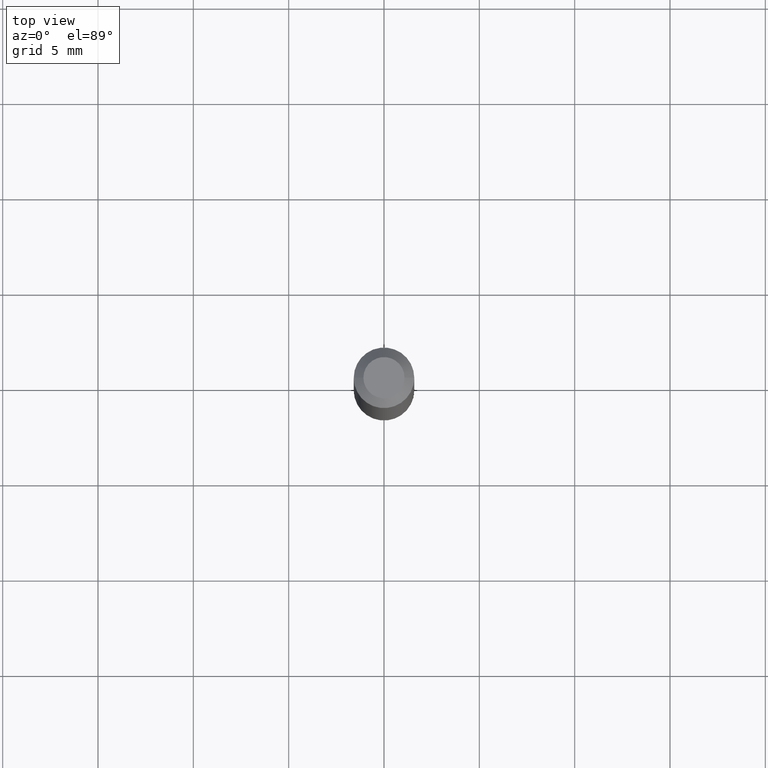
[diagram: clean part render]
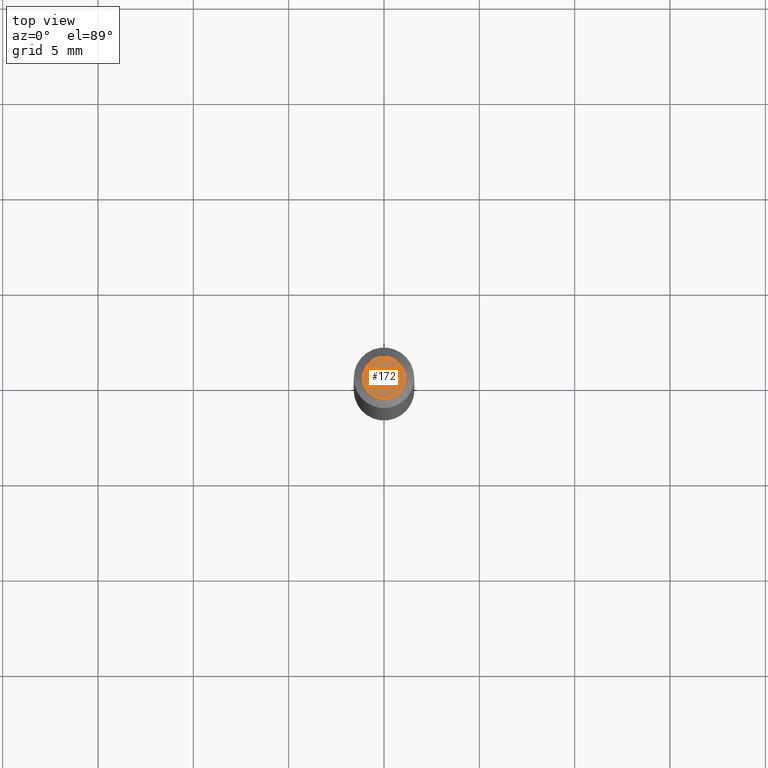
[diagram: same view with one face highlighted and labeled with its STEP entity id]
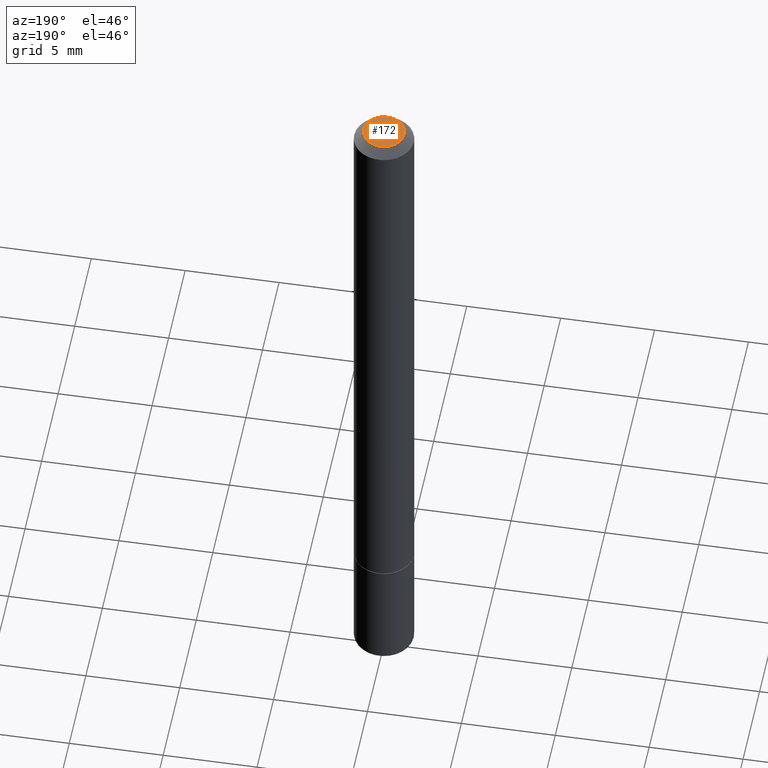
[diagram: same view with one face highlighted and labeled with its STEP entity id]
A machine part, top view. The second image highlights one B-rep face of the part: STEP entity #172.
A second angle (auxiliary view) of the same face is appended — the face is thin or edge-on in the first view.
In plain terms, the highlighted planar face has unit normal (0, -0, -1).
Its self-contained STEP definition (entity closure, byte-faithful):
#3 = PLANE ( 'NONE',  #114 ) ;
#52 = CARTESIAN_POINT ( 'NONE',  ( 0.04249999999999995448, -3.950909582714366952E-16, -3.841661241090128254E-17 ) ) ;
#65 = AXIS2_PLACEMENT_3D ( 'NONE', #236, #75, #365 ) ;
#69 = FACE_OUTER_BOUND ( 'NONE', #229, .T. ) ;
#75 = DIRECTION ( 'NONE',  ( -2.445468806185136597E-29, 3.491481338843145583E-15, 1.000000000000000000 ) ) ;
#114 = AXIS2_PLACEMENT_3D ( 'NONE', #213, #348, #169 ) ;
#125 = EDGE_CURVE ( 'NONE', #390, #380, #159, .T. ) ;
#138 = DIRECTION ( 'NONE',  ( -2.445468806185136597E-29, 3.491481338843145583E-15, 1.000000000000000000 ) ) ;
#151 = CARTESIAN_POINT ( 'NONE',  ( -0.04249999999999995448, 3.316907271900970672E-16, -3.841661241090589861E-17 ) ) ;
#159 = CIRCLE ( 'NONE', #65, 0.04249999999999995448 ) ;
#165 = AXIS2_PLACEMENT_3D ( 'NONE', #201, #138, #205 ) ;
#169 = DIRECTION ( 'NONE',  ( -1.000000000000000000, 6.982962677686265922E-15, -4.876176775795935793E-29 ) ) ;
#172 = ADVANCED_FACE ( 'NONE', ( #69 ), #3, .F. ) ;
#179 = ORIENTED_EDGE ( 'NONE', *, *, #125, .T. ) ;
#201 = CARTESIAN_POINT ( 'NONE',  ( 9.394662729016977403E-46, -1.341308853342402453E-31, -3.841661241090370459E-17 ) ) ;
#205 = DIRECTION ( 'NONE',  ( 1.000000000000000000, -6.982962677686267499E-15, 4.870577812114089772E-29 ) ) ;
#213 = CARTESIAN_POINT ( 'NONE',  ( 2.967759138016660098E-16, 0.04249999999999995448, -1.675962631062853934E-16 ) ) ;
#221 = EDGE_CURVE ( 'NONE', #380, #390, #255, .T. ) ;
#229 = EDGE_LOOP ( 'NONE', ( #316, #179 ) ) ;
#236 = CARTESIAN_POINT ( 'NONE',  ( 9.394662729016977403E-46, -1.341308853342402453E-31, -3.841661241090370459E-17 ) ) ;
#255 = CIRCLE ( 'NONE', #165, 0.04249999999999995448 ) ;
#316 = ORIENTED_EDGE ( 'NONE', *, *, #221, .T. ) ;
#348 = DIRECTION ( 'NONE',  ( 2.438088387897960049E-29, -3.491481338843145188E-15, -1.000000000000000000 ) ) ;
#365 = DIRECTION ( 'NONE',  ( 1.000000000000000000, -6.982962677686267499E-15, 4.870577812114089772E-29 ) ) ;
#380 = VERTEX_POINT ( 'NONE', #151 ) ;
#390 = VERTEX_POINT ( 'NONE', #52 ) ;